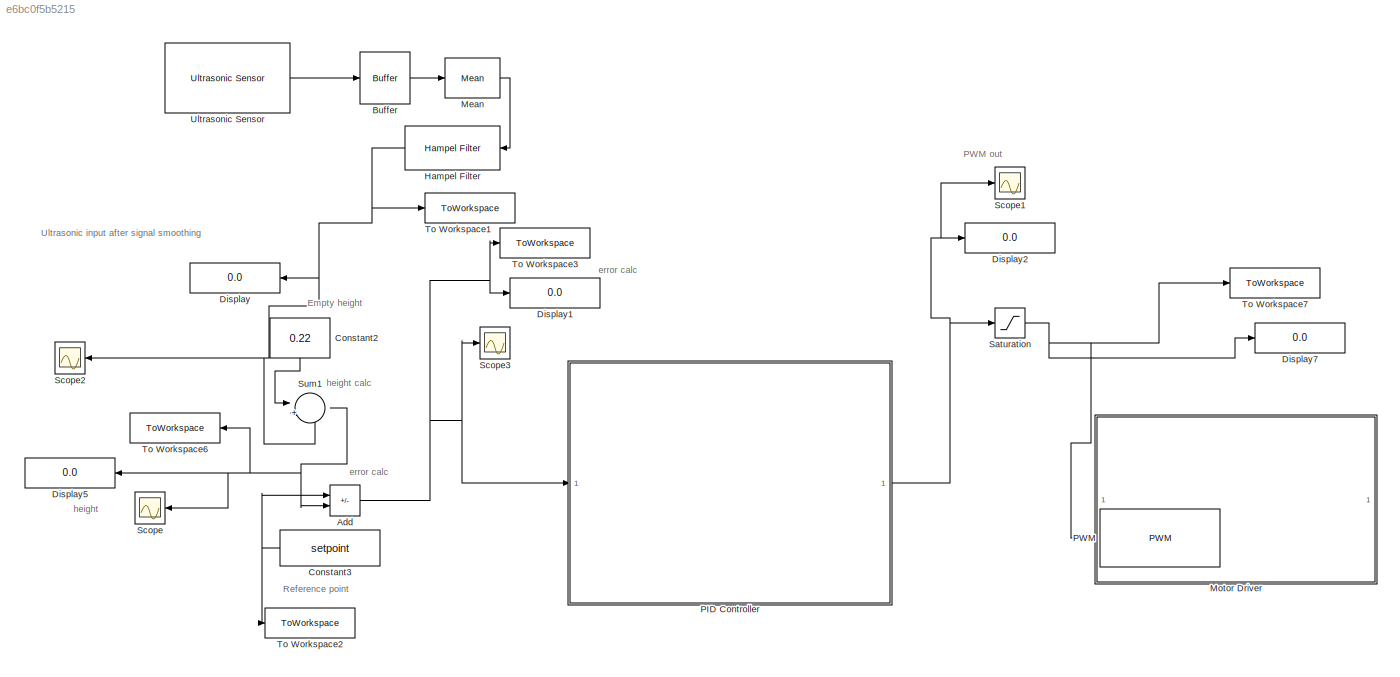
MODEL slx_e6bc0f5b5215
KIND model
CONFIG AbsTol = auto
CONFIG EnableMultiTasking = on
CONFIG FixedStep = 0.1
CONFIG MaxStep = auto
CONFIG MinStep = auto
CONFIG RelTol = 1e-3
CONFIG SampleTimeConstraint = Unconstrained
CONFIG SolverName = FixedStepAuto
CONFIG StartTime = 0.0
CONFIG StopTime = simTime
BLOCK [Sum] Add
  IconShape = rectangular
  Inputs = +-
BLOCK [Buffer] Buffer
  N = 5
  OutputFrames = off
BLOCK [Constant] Constant2
  NameLocation = left
  Value = 0.22
BLOCK [Constant] Constant3
  Value = setpoint
BLOCK [Display] Display
  Decimation = 1
BLOCK [Display] Display1
  Decimation = 1
BLOCK [Display] Display2
  Decimation = 1
BLOCK [Display] Display5
  Decimation = 1
BLOCK [Display] Display7
  Decimation = 1
BLOCK [Reference] Hampel Filter  REF=dspfdesign/Hampel
Filter
  SourceBlock = dspfdesign/Hampel\nFilter
  SourceType = dsp.simulink.HampelFilter
BLOCK [Reference] Mean  REF=dspstat3/Mean
  SourceBlock = dspstat3/Mean
  SourceType = Mean
  UserDataPersistent = on
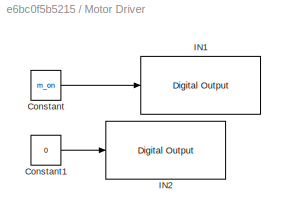
BLOCK [SubSystem] Motor Driver
BLOCK [Constant] Motor Driver/Constant
  Value = m_on
BLOCK [Constant] Motor Driver/Constant1
  Value = 0
BLOCK [Reference] Motor Driver/IN1  REF=arduinolib/Digital Output
  SourceBlock = arduinolib/Digital Output
  SourceType = Arduino Digital Output
BLOCK [Reference] Motor Driver/IN2  REF=arduinolib/Digital Output
  SourceBlock = arduinolib/Digital Output
  SourceType = Arduino Digital Output
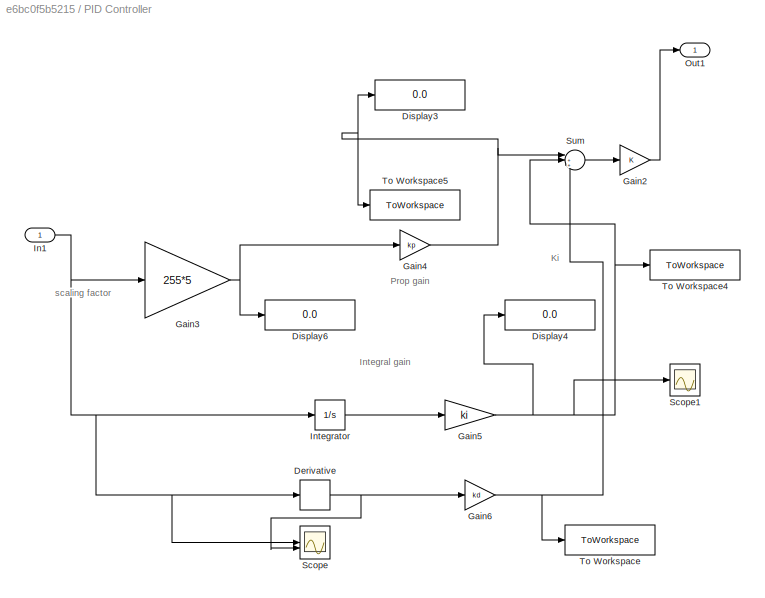
BLOCK [SubSystem] PID Controller
BLOCK [Derivative] PID Controller/Derivative
BLOCK [Display] PID Controller/Display3
  Decimation = 1
BLOCK [Display] PID Controller/Display4
  Decimation = 1
BLOCK [Display] PID Controller/Display6
  Decimation = 1
BLOCK [Gain] PID Controller/Gain2
BLOCK [Gain] PID Controller/Gain3
  Gain = 255*5
BLOCK [Gain] PID Controller/Gain4
  Gain = kp
BLOCK [Gain] PID Controller/Gain5
  Gain = ki
BLOCK [Gain] PID Controller/Gain6
  Gain = kd
BLOCK [Inport] PID Controller/In1
BLOCK [Integrator] PID Controller/Integrator
BLOCK [Outport] PID Controller/Out1
BLOCK [Scope] PID Controller/Scope
  Floating = off
  NumInputPorts = 2
  ScopeSpecificationString = Simulink.scopes.TimeScopeBlockCfg('CurrentConfiguration', extmgr.ConfigurationSet(extmgr.Configuration('Core','General UI',true),extmgr.Configuration('Core','Source UI',true),extmgr.Configuration('Sources','WiredSimulink',true,'DataLoggingVariableName','ScopeData1'),extmgr.Configuration('Visuals','Time Domain',true,'SerializedDisplays',{struct('MinYLimReal','-1','MaxYLimReal','1','YLabelReal','','...<+1513ch>
BLOCK [Scope] PID Controller/Scope1
  Floating = off
  NumInputPorts = 1
  ScopeSpecificationString = Simulink.scopes.TimeScopeBlockCfg('CurrentConfiguration', extmgr.ConfigurationSet(extmgr.Configuration('Core','General UI',true),extmgr.Configuration('Core','Source UI',true),extmgr.Configuration('Sources','WiredSimulink',true,'DataLoggingVariableName','ScopeData2'),extmgr.Configuration('Visuals','Time Domain',true,'SerializedDisplays',{struct('MinYLimReal','0','MaxYLimReal','500','YLabelReal','',...<+1506ch>
BLOCK [Sum] PID Controller/Sum
  Inputs = |+++
BLOCK [ToWorkspace] PID Controller/To Workspace
  FixptAsFi = on
  MaxDataPoints = inf
  SampleTime = -1
  SaveFormat = Timeseries
  VariableName = kd_g
BLOCK [ToWorkspace] PID Controller/To Workspace4
  FixptAsFi = on
  MaxDataPoints = inf
  SampleTime = -1
  SaveFormat = Timeseries
  VariableName = ki_g
BLOCK [ToWorkspace] PID Controller/To Workspace5
  FixptAsFi = on
  MaxDataPoints = inf
  SampleTime = -1
  SaveFormat = Timeseries
  VariableName = kp_g
BLOCK [Reference] PWM  REF=arduinolib/PWM
  SourceBlock = arduinolib/PWM
  SourceType = Arduino PWM
BLOCK [Saturate] Saturation
  LowerLimit = 0
  UpperLimit = 255
BLOCK [Scope] Scope
  Floating = off
  NumInputPorts = 1
  ScopeSpecificationString = Simulink.scopes.TimeScopeBlockCfg('CurrentConfiguration', extmgr.ConfigurationSet(extmgr.Configuration('Core','General UI',true),extmgr.Configuration('Core','Source UI',true),extmgr.Configuration('Sources','WiredSimulink',true,'DataLoggingVariableName','ScopeData1'),extmgr.Configuration('Visuals','Time Domain',true,'SerializedDisplays',{struct('MinYLimReal','0.14299','MaxYLimReal','0.20','YLabelRe...<+1595ch>
BLOCK [Scope] Scope1
  Floating = off
  NumInputPorts = 1
  ScopeSpecificationString = Simulink.scopes.TimeScopeBlockCfg('CurrentConfiguration', extmgr.ConfigurationSet(extmgr.Configuration('Core','General UI',true),extmgr.Configuration('Core','Source UI',true),extmgr.Configuration('Sources','WiredSimulink',true,'DataLoggingVariableName','ScopeData2'),extmgr.Configuration('Visuals','Time Domain',true,'SerializedDisplays',{struct('MinYLimReal','-1241.58592','MaxYLimReal','2229.67331'...<+1585ch>
BLOCK [Scope] Scope2
  Floating = off
  NumInputPorts = 1
  ScopeSpecificationString = Simulink.scopes.TimeScopeBlockCfg('CurrentConfiguration', extmgr.ConfigurationSet(extmgr.Configuration('Core','General UI',true),extmgr.Configuration('Core','Source UI',true),extmgr.Configuration('Sources','WiredSimulink',true,'DataLoggingVariableName','ScopeData3'),extmgr.Configuration('Visuals','Time Domain',true,'SerializedDisplays',{struct('MinYLimReal','0.10737','MaxYLimReal','0.13061','YLabe...<+1576ch>
BLOCK [Scope] Scope3
  Floating = off
  NumInputPorts = 1
  ScopeSpecificationString = Simulink.scopes.TimeScopeBlockCfg('CurrentConfiguration', extmgr.ConfigurationSet(extmgr.Configuration('Core','General UI',true),extmgr.Configuration('Core','Source UI',true),extmgr.Configuration('Sources','WiredSimulink',true),extmgr.Configuration('Visuals','Time Domain',true,'SerializedDisplays',{struct('MinYLimReal','-0.14636','MaxYLimReal','0.1172','YLabelReal','','MinYLimMag','0.00000','MaxYL...<+1511ch>
BLOCK [Sum] Sum1
  Inputs = |+-
BLOCK [ToWorkspace] To Workspace1
  FixptAsFi = on
  MaxDataPoints = inf
  SampleTime = -1
  SaveFormat = Timeseries
  VariableName = us_post
BLOCK [ToWorkspace] To Workspace2
  FixptAsFi = on
  MaxDataPoints = inf
  SampleTime = -1
  SaveFormat = Timeseries
  VariableName = ref_point
BLOCK [ToWorkspace] To Workspace3
  FixptAsFi = on
  MaxDataPoints = inf
  SampleTime = -1
  SaveFormat = Timeseries
  VariableName = error_calc
BLOCK [ToWorkspace] To Workspace6
  FixptAsFi = on
  MaxDataPoints = inf
  SampleTime = -1
  SaveFormat = Timeseries
  VariableName = pi_height
BLOCK [ToWorkspace] To Workspace7
  FixptAsFi = on
  MaxDataPoints = inf
  SampleTime = -1
  SaveFormat = Timeseries
  VariableName = pwm_g
BLOCK [Reference] Ultrasonic Sensor  REF=arduinosensorlib/Ultrasonic Sensor
  SourceBlock = arduinosensorlib/Ultrasonic Sensor
  SourceType = Arduino Ultrasonic Sensor
ANNOTATION (root): height
ANNOTATION (root): Empty height
ANNOTATION (root): PWM out
ANNOTATION (root): Reference point
ANNOTATION (root): Ultrasonic input after signal smoothing
ANNOTATION (root): error calc
ANNOTATION (root): height calc
ANNOTATION PID Controller: Integral gain
ANNOTATION PID Controller: Ki
ANNOTATION PID Controller: Prop gain
ANNOTATION PID Controller: scaling factor
NET Add:1 -> Display1:1, PID Controller:1, Scope3:1, To Workspace3:1
LINE Buffer:1 -> Mean:1
LINE Constant2:1 -> Sum1:1
NET Constant3:1 -> Add:1, To Workspace2:1
NET Hampel Filter:1 -> Display:1, Scope2:1, Sum1:2, To Workspace1:1
LINE Mean:1 -> Hampel Filter:1
LINE Motor Driver/Constant1:1 -> Motor Driver/IN2:1
LINE Motor Driver/Constant:1 -> Motor Driver/IN1:1
NET PID Controller/Derivative:1 -> PID Controller/Gain6:1, PID Controller/Scope:2
LINE PID Controller/Gain2:1 -> PID Controller/Out1:1
NET PID Controller/Gain3:1 -> PID Controller/Display6:1, PID Controller/Gain4:1
NET PID Controller/Gain4:1 -> PID Controller/Display3:1, PID Controller/Sum:1, PID Controller/To Workspace5:1
NET PID Controller/Gain5:1 -> PID Controller/Display4:1, PID Controller/Scope1:1, PID Controller/Sum:2, PID Controller/To Workspace4:1
NET PID Controller/Gain6:1 -> PID Controller/Sum:3, PID Controller/To Workspace:1
NET PID Controller/In1:1 -> PID Controller/Derivative:1, PID Controller/Gain3:1, PID Controller/Integrator:1, PID Controller/Scope:1
LINE PID Controller/Integrator:1 -> PID Controller/Gain5:1
LINE PID Controller/Sum:1 -> PID Controller/Gain2:1
NET PID Controller:1 -> Display2:1, Saturation:1, Scope1:1
NET Saturation:1 -> Display7:1, PWM:1, To Workspace7:1
NET Sum1:1 -> Add:2, Display5:1, Scope:1, To Workspace6:1
LINE Ultrasonic Sensor:1 -> Buffer:1
note: NET lines group one-source signal fan-out (src -> all destinations, sorted); 1:1 wires keep LINE
